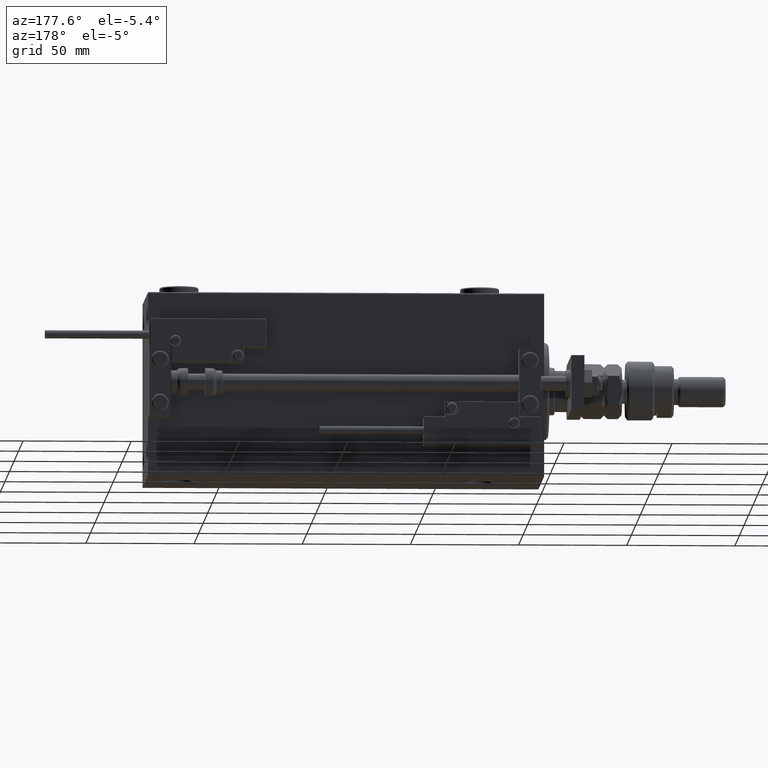
[diagram: clean part render]
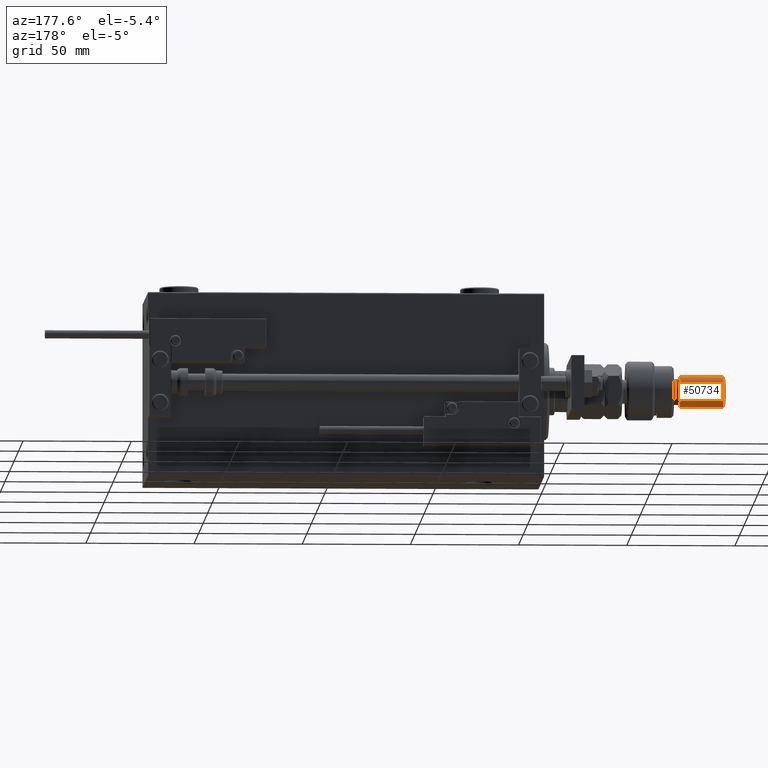
[diagram: same view with one face highlighted and labeled with its STEP entity id]
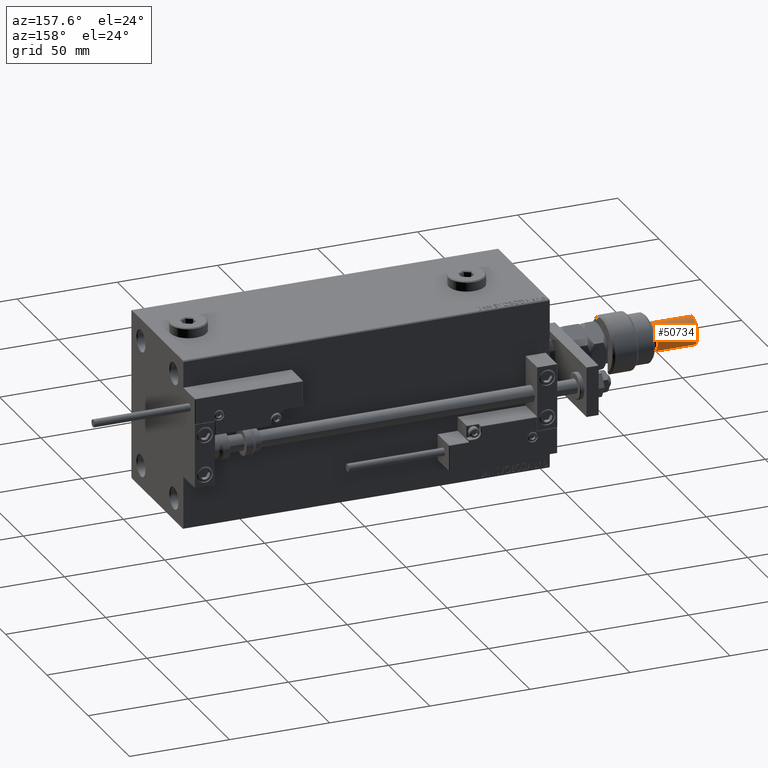
[diagram: same view with one face highlighted and labeled with its STEP entity id]
A machine part, auxiliary view. The second image highlights one B-rep face of the part: STEP entity #50734.
A second angle (auxiliary view) of the same face is appended — the face is thin or edge-on in the first view.
In plain terms, the highlighted cylindrical surface (edge-blend (fillet) strip) has radius 7 mm, axis along (1, 0, -0).
Its self-contained STEP definition (entity closure, byte-faithful):
#319 = DIRECTION ( 'NONE',  ( -0.000000000000000000, -0.000000000000000000, -1.000000000000000000 ) ) ;
#1276 = VERTEX_POINT ( 'NONE', #22488 ) ;
#7140 = DIRECTION ( 'NONE',  ( 1.000000000000000000, 0.000000000000000000, 0.000000000000000000 ) ) ;
#8012 = CIRCLE ( 'NONE', #42894, 7.000000000000000000 ) ;
#8241 = DIRECTION ( 'NONE',  ( 0.000000000000000000, 0.000000000000000000, -1.000000000000000000 ) ) ;
#9257 = CYLINDRICAL_SURFACE ( 'NONE', #33388, 7.000000000000000000 ) ;
#9474 = EDGE_CURVE ( 'NONE', #1276, #36585, #40603, .T. ) ;
#9540 = CARTESIAN_POINT ( 'NONE',  ( 0.000000000000000000, 0.000000000000000000, 46.00000000000000000 ) ) ;
#11341 = DIRECTION ( 'NONE',  ( -0.000000000000000000, -0.000000000000000000, 1.000000000000000000 ) ) ;
#13986 = ORIENTED_EDGE ( 'NONE', *, *, #50409, .T. ) ;
#17284 = AXIS2_PLACEMENT_3D ( 'NONE', #28688, #8241, #7140 ) ;
#18143 = ORIENTED_EDGE ( 'NONE', *, *, #41488, .T. ) ;
#19332 = CARTESIAN_POINT ( 'NONE',  ( -7.000000000000000000, 0.000000000000000000, 46.00000000000000000 ) ) ;
#19480 = VERTEX_POINT ( 'NONE', #45167 ) ;
#21614 = EDGE_CURVE ( 'NONE', #19480, #38571, #31112, .T. ) ;
#22488 = CARTESIAN_POINT ( 'NONE',  ( -7.000000000000000000, 0.000000000000000000, 44.99999999999999289 ) ) ;
#23418 = CARTESIAN_POINT ( 'NONE',  ( 7.000000000000000000, 8.572527594031473190E-16, 24.99999999999998934 ) ) ;
#28688 = CARTESIAN_POINT ( 'NONE',  ( 0.000000000000000000, 0.000000000000000000, 44.99999999999999289 ) ) ;
#31112 = LINE ( 'NONE', #50576, #35172 ) ;
#32469 = DIRECTION ( 'NONE',  ( -0.000000000000000000, -0.000000000000000000, -1.000000000000000000 ) ) ;
#33388 = AXIS2_PLACEMENT_3D ( 'NONE', #9540, #319, #43705 ) ;
#34698 = CARTESIAN_POINT ( 'NONE',  ( -7.000000000000000000, 0.000000000000000000, 24.99999999999998934 ) ) ;
#35172 = VECTOR ( 'NONE', #54763, 1000.000000000000000 ) ;
#35993 = CARTESIAN_POINT ( 'NONE',  ( 0.000000000000000000, 0.000000000000000000, 24.99999999999998934 ) ) ;
#36585 = VERTEX_POINT ( 'NONE', #34698 ) ;
#38571 = VERTEX_POINT ( 'NONE', #23418 ) ;
#40603 = LINE ( 'NONE', #19332, #47494 ) ;
#41488 = EDGE_CURVE ( 'NONE', #38571, #36585, #8012, .T. ) ;
#42215 = EDGE_LOOP ( 'NONE', ( #13986, #44359, #18143, #55046 ) ) ;
#42894 = AXIS2_PLACEMENT_3D ( 'NONE', #35993, #11341, #44677 ) ;
#43705 = DIRECTION ( 'NONE',  ( -1.000000000000000000, 0.000000000000000000, 0.000000000000000000 ) ) ;
#44359 = ORIENTED_EDGE ( 'NONE', *, *, #21614, .T. ) ;
#44677 = DIRECTION ( 'NONE',  ( 1.000000000000000000, 0.000000000000000000, 0.000000000000000000 ) ) ;
#45167 = CARTESIAN_POINT ( 'NONE',  ( 7.000000000000000000, 8.572527594031473190E-16, 44.99999999999999289 ) ) ;
#45921 = CIRCLE ( 'NONE', #17284, 7.000000000000000000 ) ;
#47494 = VECTOR ( 'NONE', #32469, 1000.000000000000000 ) ;
#47620 = FACE_OUTER_BOUND ( 'NONE', #42215, .T. ) ;
#50409 = EDGE_CURVE ( 'NONE', #1276, #19480, #45921, .T. ) ;
#50576 = CARTESIAN_POINT ( 'NONE',  ( 7.000000000000000000, 8.572527594031473190E-16, 46.00000000000000000 ) ) ;
#50734 = ADVANCED_FACE ( 'NONE', ( #47620 ), #9257, .T. ) ;
#54763 = DIRECTION ( 'NONE',  ( -0.000000000000000000, -0.000000000000000000, -1.000000000000000000 ) ) ;
#55046 = ORIENTED_EDGE ( 'NONE', *, *, #9474, .F. ) ;